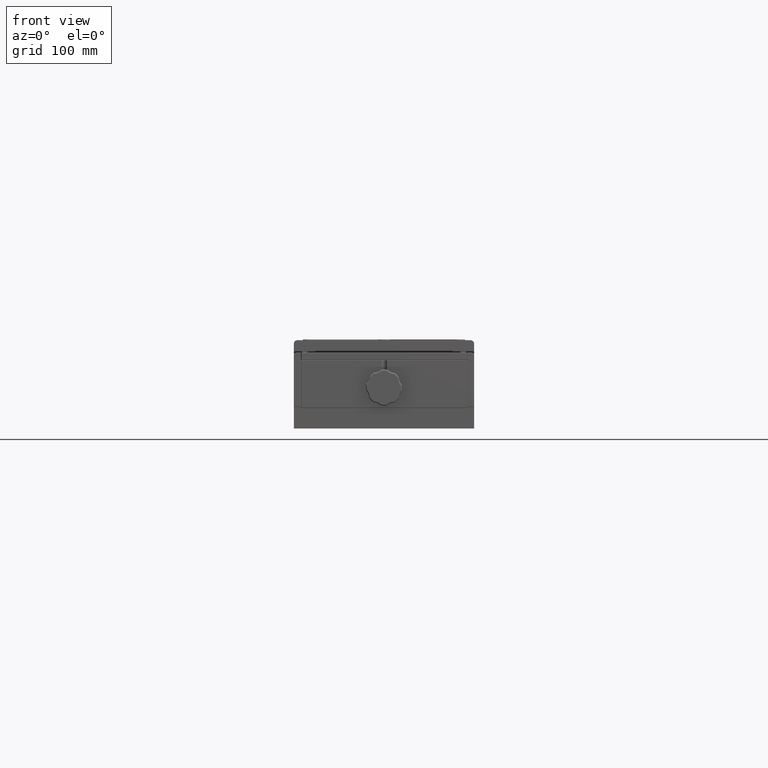
[diagram: clean part render]
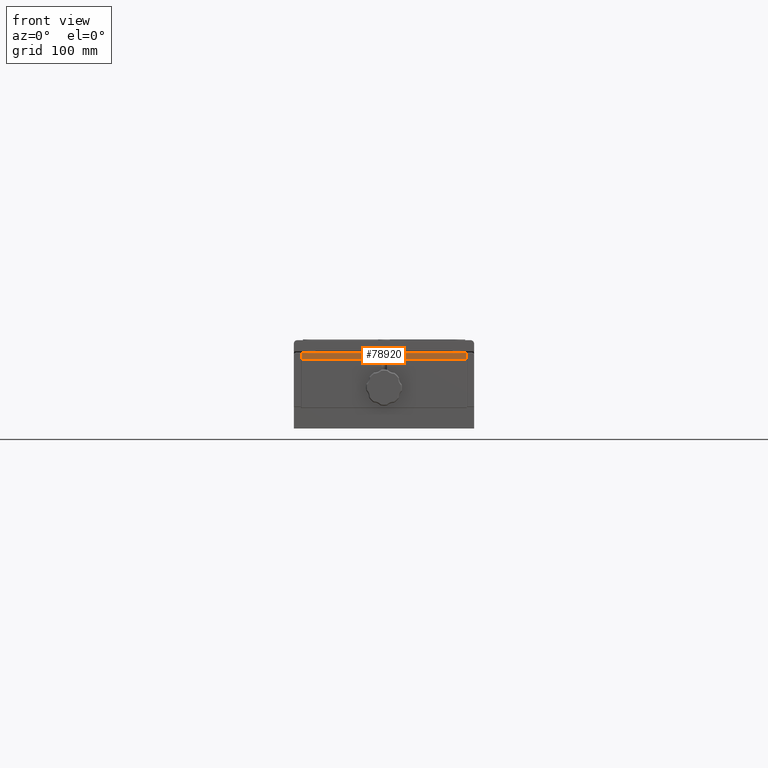
[diagram: same view with one face highlighted and labeled with its STEP entity id]
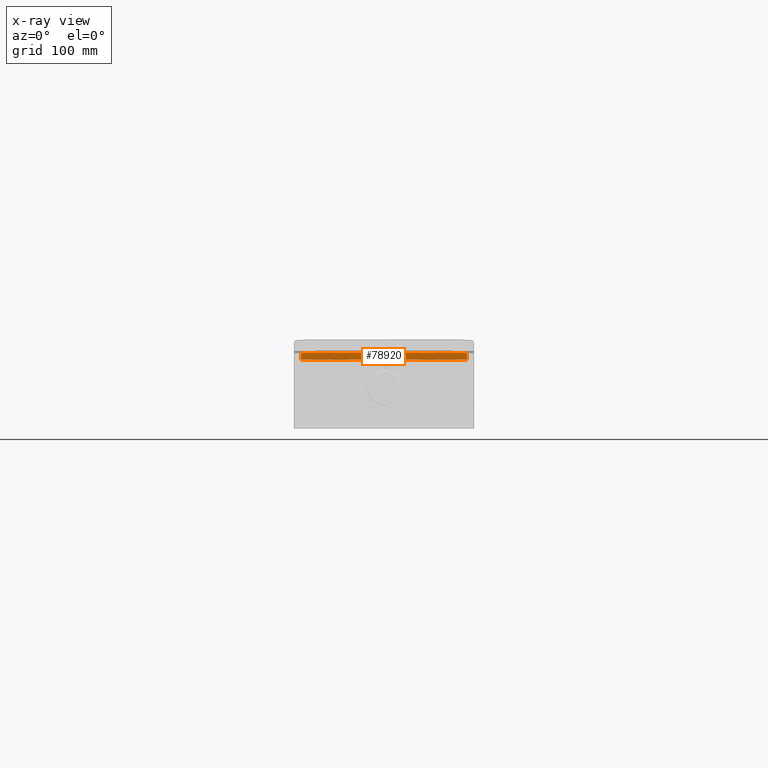
[diagram: x-ray of the same camera — body ghosted, the highlighted face saturated]
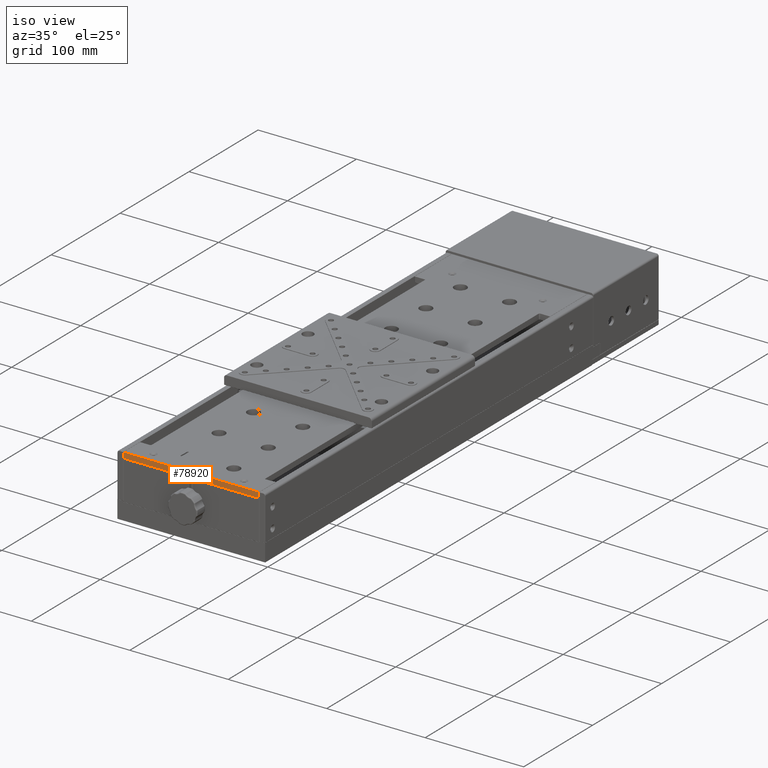
[diagram: same view with one face highlighted and labeled with its STEP entity id]
A machine part, front view. The second image highlights one B-rep face of the part: STEP entity #78920.
The next image is the same camera in x-ray: the body ghosted, the highlighted face saturated — about 0% of this face is hidden behind the body in this view.
A second angle (iso view) of the same face is appended — the face is thin or edge-on in the first view.
In plain terms, the highlighted planar face has unit normal (0, 1, 0).
Its self-contained STEP definition (entity closure, byte-faithful):
#907 = EDGE_CURVE ( 'NONE', #62845, #6274, #61039, .T. ) ;
#1569 = CARTESIAN_POINT ( 'NONE',  ( -139.1854323028809972, -109.9688097581720001, 40.84665025355560175 ) ) ;
#4708 = CARTESIAN_POINT ( 'NONE',  ( -139.3854323028810143, -109.9688097581720001, 40.84665025355560175 ) ) ;
#6274 = VERTEX_POINT ( 'NONE', #35990 ) ;
#8293 = AXIS2_PLACEMENT_3D ( 'NONE', #12383, #37216, #62060 ) ;
#9992 = DIRECTION ( 'NONE',  ( -1.000000000000000000, 3.068793803895244598E-16, 5.394906579123439885E-17 ) ) ;
#12383 = CARTESIAN_POINT ( 'NONE',  ( -145.5854323028810029, -109.9688097581720001, 41.04665025355559749 ) ) ;
#13448 = ORIENTED_EDGE ( 'NONE', *, *, #907, .T. ) ;
#15100 = EDGE_LOOP ( 'NONE', ( #62827, #79071, #56728, #13448 ) ) ;
#17071 = DIRECTION ( 'NONE',  ( -5.394906579123439885E-17, 6.349248535958970176E-17, -1.000000000000000000 ) ) ;
#17147 = CARTESIAN_POINT ( 'NONE',  ( -1.985432302880895339, -109.9688097581720001, 41.04665025355554775 ) ) ;
#17533 = DIRECTION ( 'NONE',  ( 5.394906579123439885E-17, -6.349248535958970176E-17, 1.000000000000000000 ) ) ;
#18491 = FACE_OUTER_BOUND ( 'NONE', #15100, .T. ) ;
#30200 = LINE ( 'NONE', #17147, #78861 ) ;
#34860 = VECTOR ( 'NONE', #17071, 1000.000000000000000 ) ;
#35990 = CARTESIAN_POINT ( 'NONE',  ( -139.1854323028809972, -109.9688097581720001, 35.24665025355555059 ) ) ;
#36004 = VERTEX_POINT ( 'NONE', #40755 ) ;
#37216 = DIRECTION ( 'NONE',  ( 3.068793803895244598E-16, 1.000000000000000000, 6.349248535958960315E-17 ) ) ;
#38237 = EDGE_CURVE ( 'NONE', #42891, #62845, #78786, .T. ) ;
#39260 = LINE ( 'NONE', #58381, #54706 ) ;
#40755 = CARTESIAN_POINT ( 'NONE',  ( -1.985432302880895339, -109.9688097581720001, 35.24665025355555059 ) ) ;
#42891 = VERTEX_POINT ( 'NONE', #52535 ) ;
#47340 = EDGE_CURVE ( 'NONE', #36004, #42891, #30200, .T. ) ;
#48010 = CARTESIAN_POINT ( 'NONE',  ( -139.1854323028809972, -109.9688097581720001, 41.04665025355559749 ) ) ;
#52535 = CARTESIAN_POINT ( 'NONE',  ( -1.985432302880895339, -109.9688097581720001, 40.84665025355560175 ) ) ;
#54706 = VECTOR ( 'NONE', #77492, 1000.000000000000000 ) ;
#56728 = ORIENTED_EDGE ( 'NONE', *, *, #38237, .T. ) ;
#58381 = CARTESIAN_POINT ( 'NONE',  ( -145.5854323028810029, -109.9688097581720001, 35.24665025355555059 ) ) ;
#61039 = LINE ( 'NONE', #48010, #34860 ) ;
#62060 = DIRECTION ( 'NONE',  ( 1.000000000000000000, -3.068793803895244598E-16, 0.000000000000000000 ) ) ;
#62827 = ORIENTED_EDGE ( 'NONE', *, *, #75628, .T. ) ;
#62845 = VERTEX_POINT ( 'NONE', #1569 ) ;
#68156 = PLANE ( 'NONE',  #8293 ) ;
#75628 = EDGE_CURVE ( 'NONE', #6274, #36004, #39260, .T. ) ;
#77492 = DIRECTION ( 'NONE',  ( 1.000000000000000000, -3.068793803895244598E-16, -5.394906579123439885E-17 ) ) ;
#78394 = VECTOR ( 'NONE', #9992, 1000.000000000000000 ) ;
#78786 = LINE ( 'NONE', #4708, #78394 ) ;
#78861 = VECTOR ( 'NONE', #17533, 1000.000000000000000 ) ;
#78920 = ADVANCED_FACE ( 'NONE', ( #18491 ), #68156, .F. ) ;
#79071 = ORIENTED_EDGE ( 'NONE', *, *, #47340, .T. ) ;